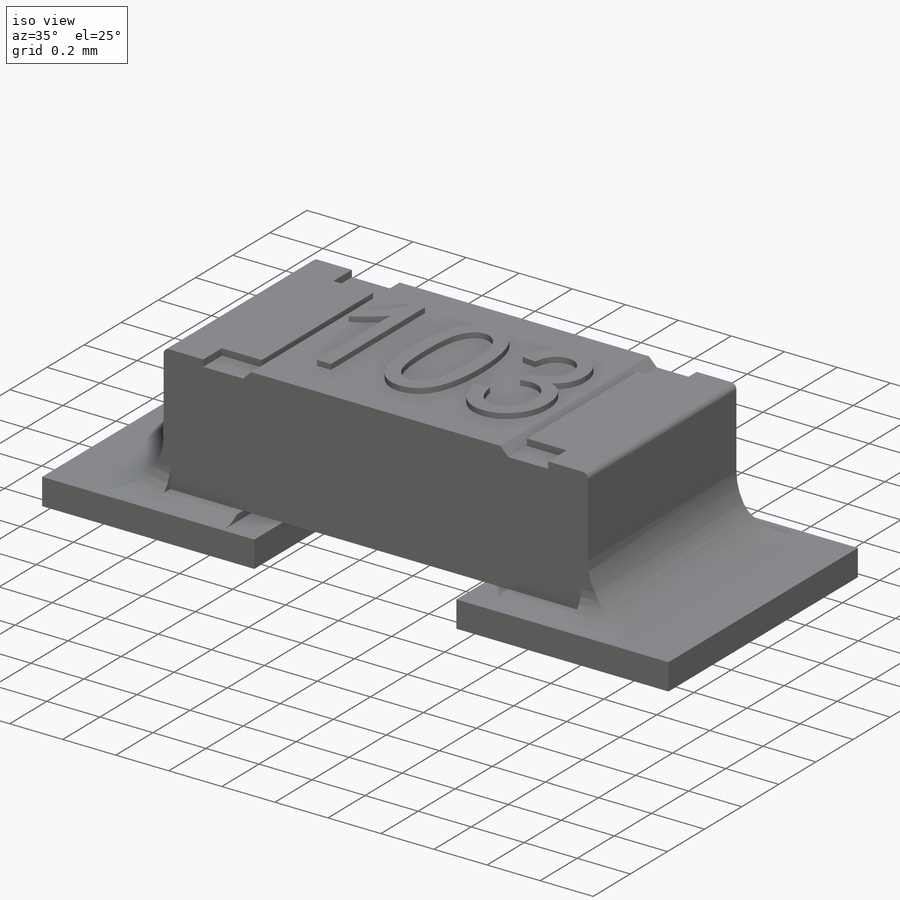
[diagram: iso view]
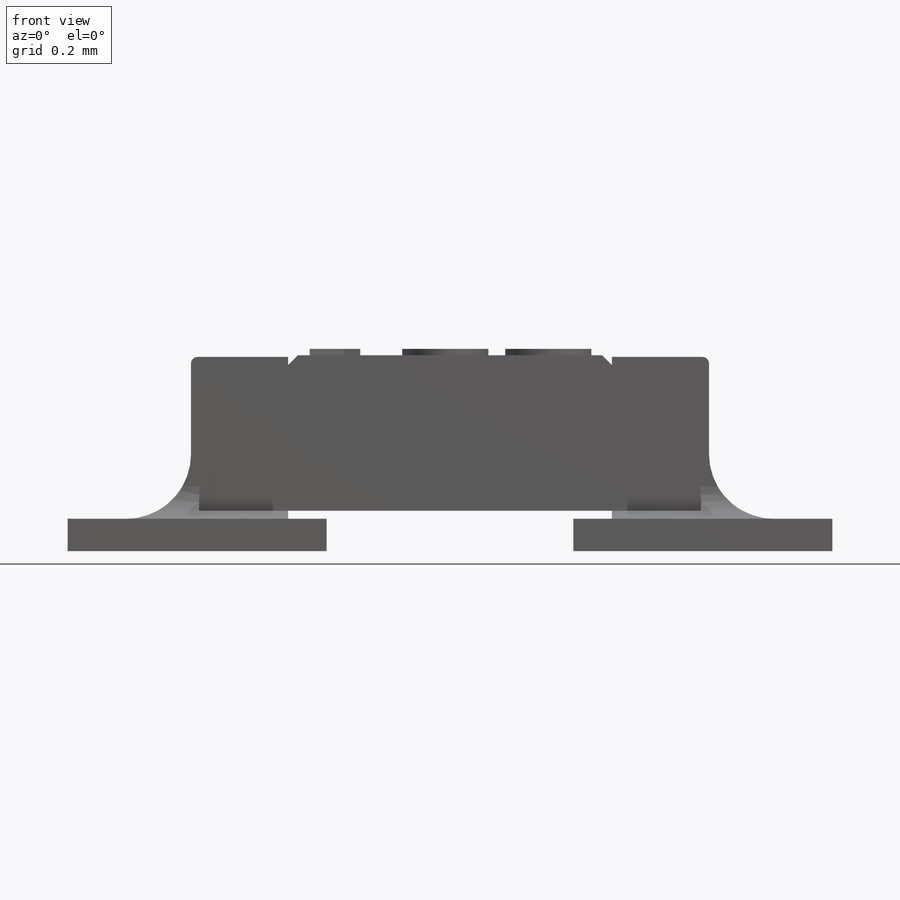
[diagram: front view]
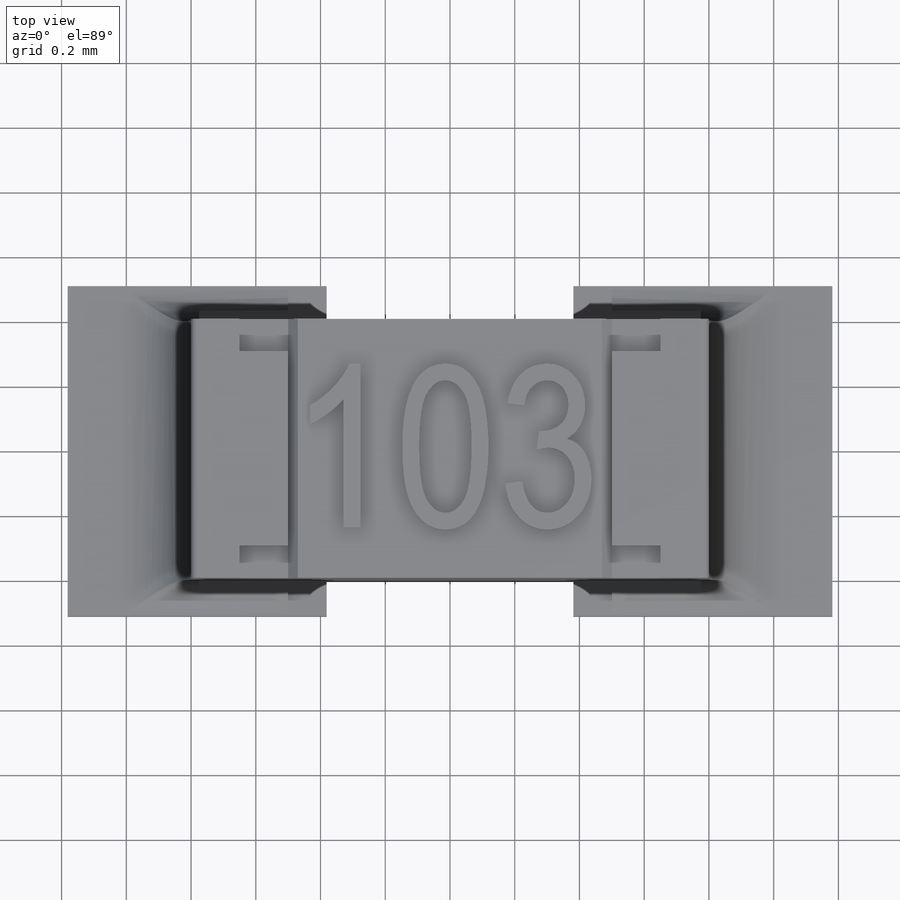
[diagram: top view]
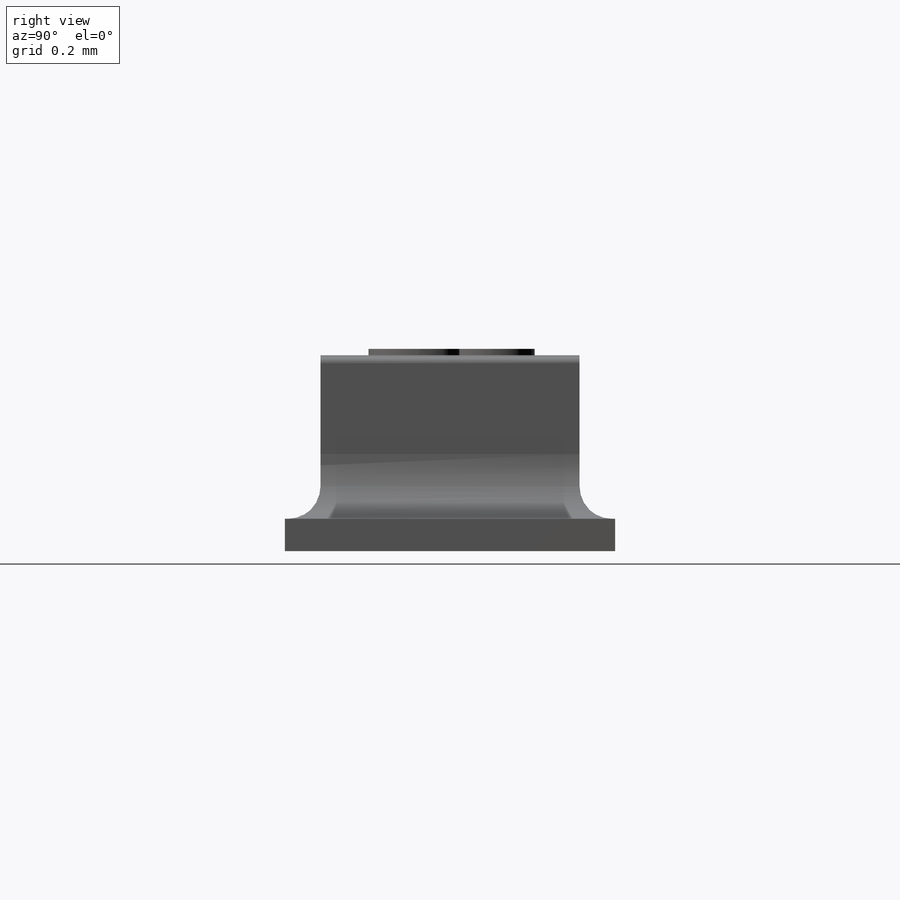
[diagram: right view]
SOLIDWORKS PART (.sldprt)
format: sldprt  version: not decoded by parser v0  size: 414,720 bytes
history: native  units: mm
features: sketch x6, extrude x5, fillet x4, material x1, cut_extrude x1 (+11 scaffold rows collapsed)
feature tree (28):
  scaffold x11  (default folders/planes/origin — collapsed)
  material  "Ceramic Porcelain"
  sketch  "Sketch1"  dims[D1=0.8mm D2=0.4mm D3=0.45mm D4=0.125mm]
  extrude  "Boss-Extrude1"  Depth=1.55mm
  sketch  "Sketch2"  dims[D6=0.02mm D1=0.025mm D2=0.025mm D3=0.025mm D4=0.3mm D5=0.3mm]
  extrude  "Boss-Extrude2"  Depth=0.8mm
  sketch  "Sketch3"  dims[D1=0.15mm D2=0.1mm]
  cut_extrude  "Cut-Extrude1"  Depth=0.025mm
  sketch  "Sketch4"  dims[c1.D1=~0.080279mm c2.D1=45.0deg c2.D2=~0.070935mm c3.D2=45.0deg c3.D3=0.03mm]
  extrude  "Boss-Extrude3"  Depth=0.8mm
  sketch  "Sketch7"  dims[D1=0.8mm D2=0.381mm D3=0.381mm D4=1.02mm D5=0.51mm]
  extrude  "Boss-Extrude5"  Depth=0.1mm
  fillet  "Fillet3"  Radius=0.2mm
  fillet  "Fillet4"  Radius=0.2mm
  fillet  "Fillet5"  Radius=0.1mm
  fillet  "Fillet6"  Radius=0.1mm
  sketch  "Esquisse2"
  extrude  "Boss.-Extru.1"  Depth=0.02mm
decode coverage: 15 of 16 modeling features carry decoded parameters
note: ~ marks probable driven/reference dimensions
note: suppression state not decoded; provenance and decode notes live in map.json
